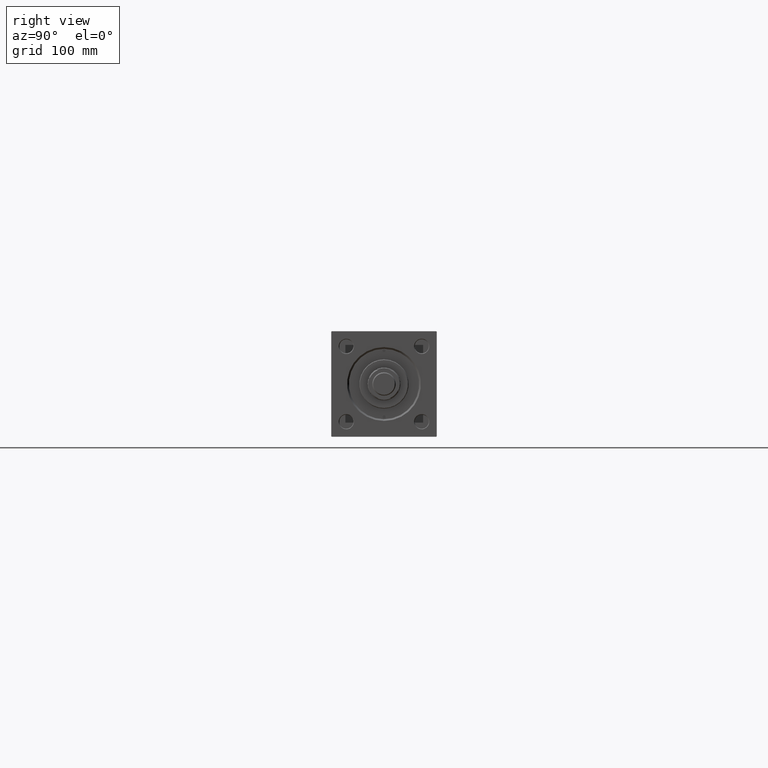
[diagram: clean part render]
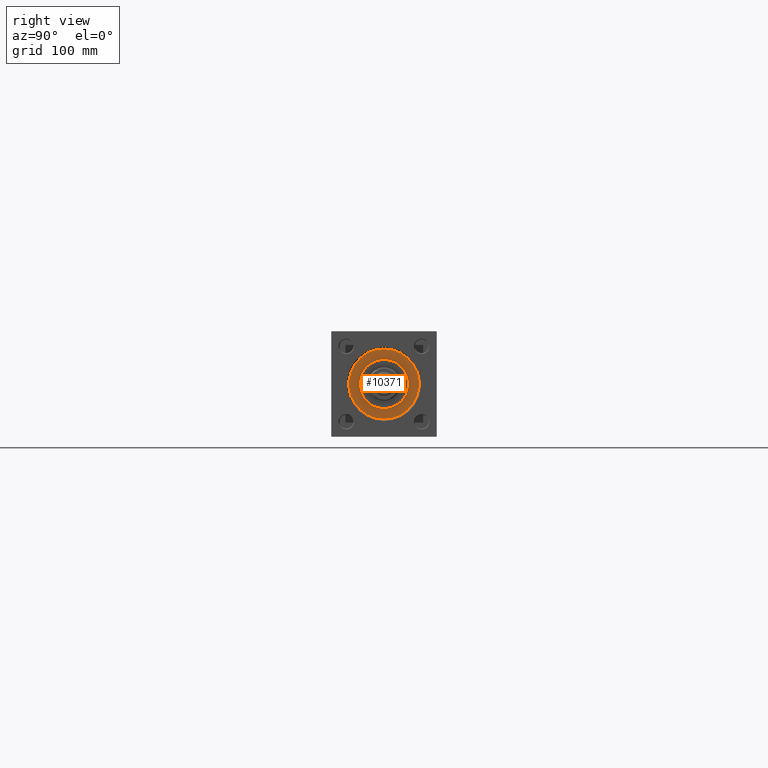
[diagram: same view with one face highlighted and labeled with its STEP entity id]
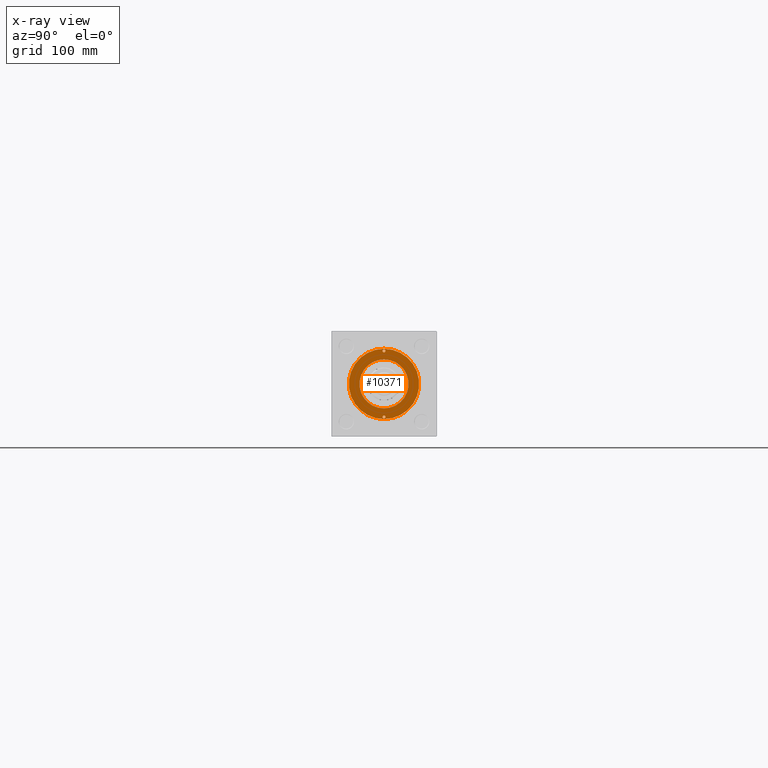
[diagram: x-ray of the same camera — body ghosted, the highlighted face saturated]
A machine part, right view. The second image highlights one B-rep face of the part: STEP entity #10371.
The next image is the same camera in x-ray: the body ghosted, the highlighted face saturated — about 0% of this face is hidden behind the body in this view.
In plain terms, the highlighted planar face has unit normal (1, 0, 0).
Its self-contained STEP definition (entity closure, byte-faithful):
#2340 = EDGE_CURVE ( 'NONE', #22152, #26252, #43610, .T. ) ;
#2653 = DIRECTION ( 'NONE',  ( 0.000000000000000000, 0.000000000000000000, 1.000000000000000000 ) ) ;
#2996 = DIRECTION ( 'NONE',  ( 1.000000000000000000, 0.000000000000000000, 0.000000000000000000 ) ) ;
#4145 = DIRECTION ( 'NONE',  ( 1.000000000000000000, 0.000000000000000000, 0.000000000000000000 ) ) ;
#4489 = CARTESIAN_POINT ( 'NONE',  ( -30.00000000000000000, 0.000000000000000000, 28.69999999999999929 ) ) ;
#4610 = AXIS2_PLACEMENT_3D ( 'NONE', #45918, #38194, #38705 ) ;
#5656 = CARTESIAN_POINT ( 'NONE',  ( 28.25000000000000000, 0.000000000000000000, 28.69999999999999929 ) ) ;
#6400 = DIRECTION ( 'NONE',  ( 0.000000000000000000, 0.000000000000000000, 1.000000000000000000 ) ) ;
#7157 = DIRECTION ( 'NONE',  ( 1.000000000000000000, 0.000000000000000000, 0.000000000000000000 ) ) ;
#7289 = CARTESIAN_POINT ( 'NONE',  ( 21.00000000000000000, 2.571758278209441661E-15, 28.69999999999999929 ) ) ;
#8768 = CARTESIAN_POINT ( 'NONE',  ( 0.000000000000000000, 0.000000000000000000, 28.69999999999999929 ) ) ;
#8826 = CIRCLE ( 'NONE', #44106, 21.00000000000000000 ) ;
#9819 = AXIS2_PLACEMENT_3D ( 'NONE', #41610, #6400, #7157 ) ;
#10331 = PLANE ( 'NONE',  #22390 ) ;
#10370 = CARTESIAN_POINT ( 'NONE',  ( 0.000000000000000000, 0.000000000000000000, 28.69999999999999929 ) ) ;
#10371 = ADVANCED_FACE ( 'NONE', ( #34452, #14704, #33457, #42184 ), #10331, .T. ) ;
#10617 = DIRECTION ( 'NONE',  ( 1.000000000000000000, 0.000000000000000000, 0.000000000000000000 ) ) ;
#10947 = CARTESIAN_POINT ( 'NONE',  ( -21.00000000000000000, 0.000000000000000000, 28.69999999999999929 ) ) ;
#11604 = CARTESIAN_POINT ( 'NONE',  ( 27.00000000000000355, 1.530808498934192803E-16, 28.69999999999999929 ) ) ;
#11901 = EDGE_CURVE ( 'NONE', #13667, #38215, #24949, .T. ) ;
#12198 = AXIS2_PLACEMENT_3D ( 'NONE', #8768, #24183, #4145 ) ;
#13667 = VERTEX_POINT ( 'NONE', #10947 ) ;
#14445 = DIRECTION ( 'NONE',  ( 0.000000000000000000, 0.000000000000000000, 1.000000000000000000 ) ) ;
#14543 = CARTESIAN_POINT ( 'NONE',  ( -29.50000000000000000, 1.530808498934192803E-16, 28.69999999999999929 ) ) ;
#14681 = EDGE_LOOP ( 'NONE', ( #36108, #40079 ) ) ;
#14704 = FACE_BOUND ( 'NONE', #35229, .T. ) ;
#14840 = DIRECTION ( 'NONE',  ( 0.000000000000000000, 0.000000000000000000, 1.000000000000000000 ) ) ;
#15381 = DIRECTION ( 'NONE',  ( 1.000000000000000000, 0.000000000000000000, 0.000000000000000000 ) ) ;
#15581 = VERTEX_POINT ( 'NONE', #32138 ) ;
#16751 = VERTEX_POINT ( 'NONE', #50879 ) ;
#17007 = ORIENTED_EDGE ( 'NONE', *, *, #11901, .F. ) ;
#17583 = ORIENTED_EDGE ( 'NONE', *, *, #39058, .F. ) ;
#18533 = DIRECTION ( 'NONE',  ( 0.000000000000000000, 0.000000000000000000, 1.000000000000000000 ) ) ;
#18782 = DIRECTION ( 'NONE',  ( 1.000000000000000000, 0.000000000000000000, 0.000000000000000000 ) ) ;
#19181 = CARTESIAN_POINT ( 'NONE',  ( 0.000000000000000000, 0.000000000000000000, 28.69999999999999929 ) ) ;
#19282 = CARTESIAN_POINT ( 'NONE',  ( 28.25000000000000000, 0.000000000000000000, 28.69999999999999929 ) ) ;
#19395 = CIRCLE ( 'NONE', #4610, 30.00000000000000000 ) ;
#20384 = CIRCLE ( 'NONE', #49137, 1.249999999999997558 ) ;
#20396 = ORIENTED_EDGE ( 'NONE', *, *, #48584, .F. ) ;
#20660 = AXIS2_PLACEMENT_3D ( 'NONE', #19282, #18533, #18782 ) ;
#21675 = EDGE_CURVE ( 'NONE', #16751, #46092, #19395, .T. ) ;
#22152 = VERTEX_POINT ( 'NONE', #23116 ) ;
#22390 = AXIS2_PLACEMENT_3D ( 'NONE', #49155, #14445, #41940 ) ;
#22831 = DIRECTION ( 'NONE',  ( 0.000000000000000000, 0.000000000000000000, 1.000000000000000000 ) ) ;
#23116 = CARTESIAN_POINT ( 'NONE',  ( 29.50000000000000000, 0.000000000000000000, 28.69999999999999929 ) ) ;
#24183 = DIRECTION ( 'NONE',  ( 0.000000000000000000, 0.000000000000000000, 1.000000000000000000 ) ) ;
#24949 = CIRCLE ( 'NONE', #43791, 21.00000000000000000 ) ;
#26252 = VERTEX_POINT ( 'NONE', #11604 ) ;
#26262 = EDGE_CURVE ( 'NONE', #26252, #22152, #20384, .T. ) ;
#26294 = CIRCLE ( 'NONE', #44324, 1.249999999999997558 ) ;
#26995 = EDGE_CURVE ( 'NONE', #46092, #16751, #30256, .T. ) ;
#27786 = VERTEX_POINT ( 'NONE', #14543 ) ;
#27872 = CIRCLE ( 'NONE', #9819, 1.249999999999997558 ) ;
#28754 = ORIENTED_EDGE ( 'NONE', *, *, #26262, .F. ) ;
#30150 = EDGE_LOOP ( 'NONE', ( #20396, #46363 ) ) ;
#30256 = CIRCLE ( 'NONE', #12198, 30.00000000000000000 ) ;
#30786 = CARTESIAN_POINT ( 'NONE',  ( -28.25000000000000000, 0.000000000000000000, 28.69999999999999929 ) ) ;
#32138 = CARTESIAN_POINT ( 'NONE',  ( -27.00000000000000355, 0.000000000000000000, 28.69999999999999929 ) ) ;
#32893 = DIRECTION ( 'NONE',  ( 1.000000000000000000, 0.000000000000000000, 0.000000000000000000 ) ) ;
#33457 = FACE_BOUND ( 'NONE', #45257, .T. ) ;
#34452 = FACE_BOUND ( 'NONE', #30150, .T. ) ;
#35229 = EDGE_LOOP ( 'NONE', ( #43170, #28754 ) ) ;
#36108 = ORIENTED_EDGE ( 'NONE', *, *, #26995, .T. ) ;
#38194 = DIRECTION ( 'NONE',  ( 0.000000000000000000, 0.000000000000000000, 1.000000000000000000 ) ) ;
#38215 = VERTEX_POINT ( 'NONE', #7289 ) ;
#38705 = DIRECTION ( 'NONE',  ( 1.000000000000000000, 0.000000000000000000, 0.000000000000000000 ) ) ;
#39058 = EDGE_CURVE ( 'NONE', #38215, #13667, #8826, .T. ) ;
#40079 = ORIENTED_EDGE ( 'NONE', *, *, #21675, .T. ) ;
#40345 = DIRECTION ( 'NONE',  ( 0.000000000000000000, 0.000000000000000000, 1.000000000000000000 ) ) ;
#41610 = CARTESIAN_POINT ( 'NONE',  ( -28.25000000000000000, 0.000000000000000000, 28.69999999999999929 ) ) ;
#41940 = DIRECTION ( 'NONE',  ( 1.000000000000000000, 0.000000000000000000, -0.000000000000000000 ) ) ;
#42184 = FACE_OUTER_BOUND ( 'NONE', #14681, .T. ) ;
#43170 = ORIENTED_EDGE ( 'NONE', *, *, #2340, .F. ) ;
#43610 = CIRCLE ( 'NONE', #20660, 1.249999999999997558 ) ;
#43791 = AXIS2_PLACEMENT_3D ( 'NONE', #10370, #2653, #10617 ) ;
#44106 = AXIS2_PLACEMENT_3D ( 'NONE', #19181, #14840, #2996 ) ;
#44324 = AXIS2_PLACEMENT_3D ( 'NONE', #30786, #22831, #15381 ) ;
#45257 = EDGE_LOOP ( 'NONE', ( #17007, #17583 ) ) ;
#45620 = EDGE_CURVE ( 'NONE', #27786, #15581, #26294, .T. ) ;
#45918 = CARTESIAN_POINT ( 'NONE',  ( 0.000000000000000000, 0.000000000000000000, 28.69999999999999929 ) ) ;
#46092 = VERTEX_POINT ( 'NONE', #4489 ) ;
#46363 = ORIENTED_EDGE ( 'NONE', *, *, #45620, .F. ) ;
#48584 = EDGE_CURVE ( 'NONE', #15581, #27786, #27872, .T. ) ;
#49137 = AXIS2_PLACEMENT_3D ( 'NONE', #5656, #40345, #32893 ) ;
#49155 = CARTESIAN_POINT ( 'NONE',  ( 0.000000000000000000, 0.000000000000000000, 28.69999999999999929 ) ) ;
#50879 = CARTESIAN_POINT ( 'NONE',  ( 30.00000000000000000, 3.673940397442059178E-15, 28.69999999999999929 ) ) ;